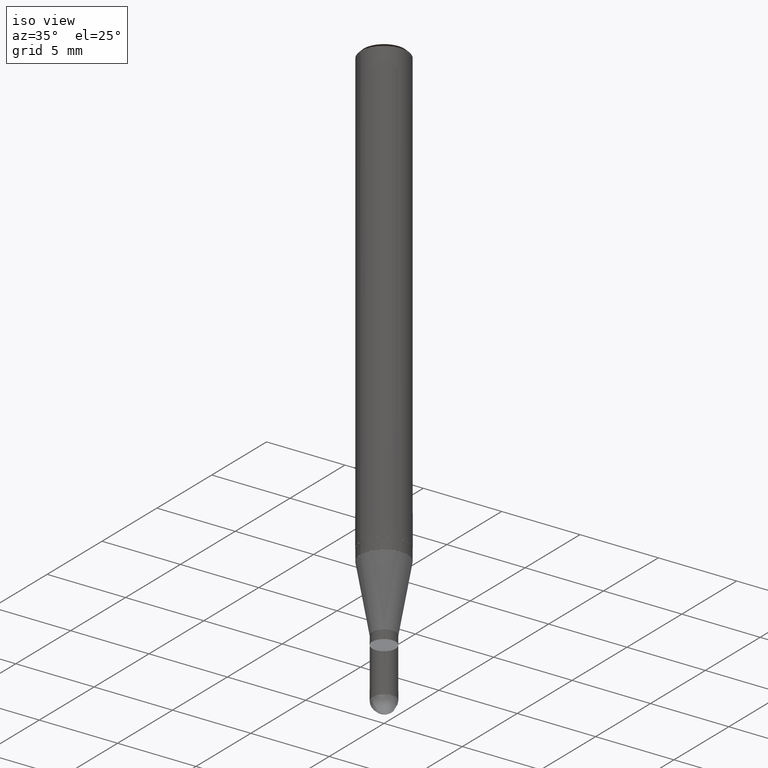
[diagram: clean part render]
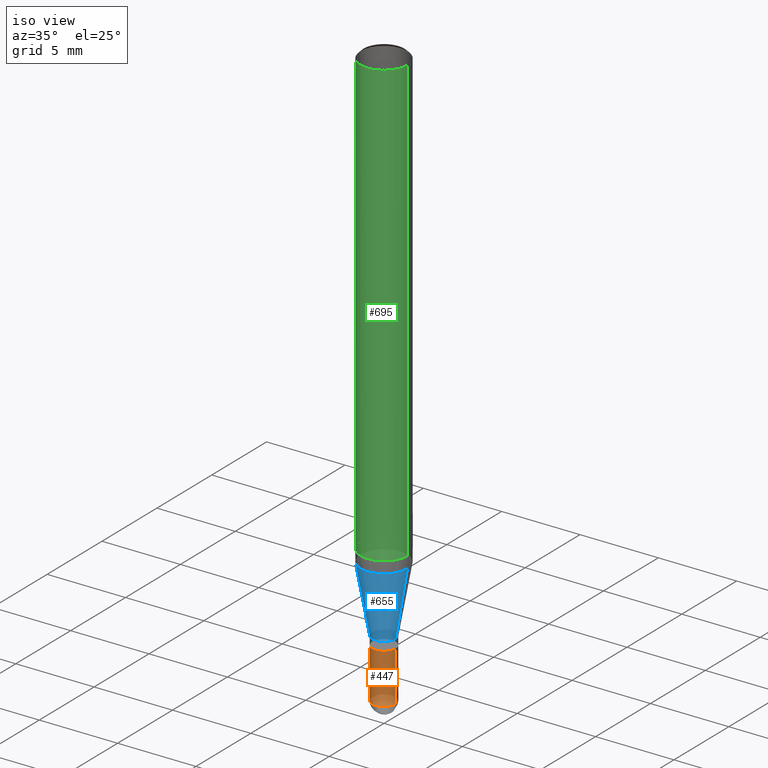
[diagram: same view with three faces highlighted in distinct colors, each labeled with its STEP entity id]
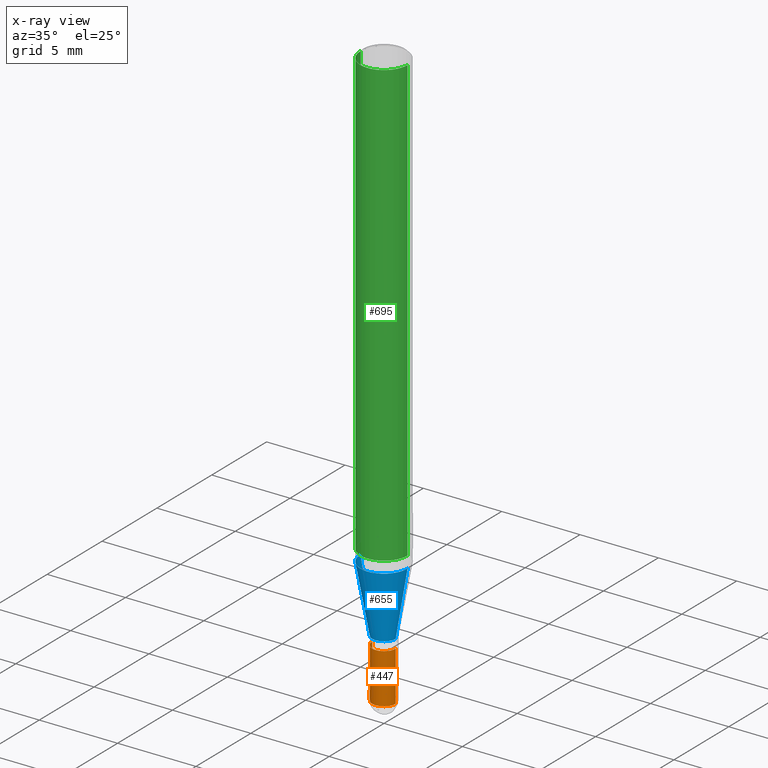
[diagram: x-ray of the same camera — body ghosted, the three highlighted faces saturated]
A machine part, iso view with three faces highlighted in distinct colors.
The next image is the same camera in x-ray (body ghosted, the three faces saturated) — at least one of them is partly hidden behind the body in this view.
Their STEP definitions:

[orange] entity #447 — the highlighted face is a freeform B-spline surface patch.
#294=CARTESIAN_POINT('',(0.75,0.0,-8.75));
#298=CARTESIAN_POINT('',(-0.75,0.0,-8.75));
#299=CARTESIAN_POINT('',(0.75,0.0,-5.5625));
#303=CARTESIAN_POINT('',(-0.75,0.0,-5.5625));
#308=CARTESIAN_POINT('',(-0.75,-0.75,-8.75));
#309=CARTESIAN_POINT('',(0.0,-0.75,-8.75));
#310=CARTESIAN_POINT('',(0.75,-0.75,-8.75));
#311=CARTESIAN_POINT('',(-0.75,-0.75,-5.5625));
#312=CARTESIAN_POINT('',(0.0,-0.75,-5.5625));
#313=CARTESIAN_POINT('',(0.75,-0.75,-5.5625));
#428=(
BOUNDED_SURFACE()
B_SPLINE_SURFACE(1,2,(
(#298,#308,#309,#310,#294),
(#303,#311,#312,#313,#299)
), .UNSPECIFIED.,.F.,.F.,.F.)
B_SPLINE_SURFACE_WITH_KNOTS((2,2),(3,2,3),(
0.0,1.0),(
0.0,0.5,1.0), .UNSPECIFIED.)
GEOMETRIC_REPRESENTATION_ITEM()
RATIONAL_B_SPLINE_SURFACE(((1.0,0.707106781187,1.0,0.707106781187,1.0),
(1.0,0.707106781187,1.0,0.707106781187,1.0)
))
REPRESENTATION_ITEM('')
SURFACE()
);
#429=(
BOUNDED_CURVE()
B_SPLINE_CURVE(2,(#294,#310,#309,#308,#298),.UNSPECIFIED.,.F.,.F.)
B_SPLINE_CURVE_WITH_KNOTS((3,2,3),
(0.0,0.5,1.0),.UNSPECIFIED.)
CURVE()
GEOMETRIC_REPRESENTATION_ITEM()
RATIONAL_B_SPLINE_CURVE((1.0,0.707106781187,1.0,0.707106781187,1.0))
REPRESENTATION_ITEM('')
);
#430=(
BOUNDED_CURVE()
B_SPLINE_CURVE(1,(#298,#303),.UNSPECIFIED.,.F.,.F.)
B_SPLINE_CURVE_WITH_KNOTS((2,2),
(0.0,1.0),.UNSPECIFIED.)
CURVE()
GEOMETRIC_REPRESENTATION_ITEM()
RATIONAL_B_SPLINE_CURVE((1.0,1.0))
REPRESENTATION_ITEM('')
);
#431=(
BOUNDED_CURVE()
B_SPLINE_CURVE(2,(#303,#311,#312,#313,#299),.UNSPECIFIED.,.F.,.F.)
B_SPLINE_CURVE_WITH_KNOTS((3,2,3),
(0.0,0.5,1.0),.UNSPECIFIED.)
CURVE()
GEOMETRIC_REPRESENTATION_ITEM()
RATIONAL_B_SPLINE_CURVE((1.0,0.707106781187,1.0,0.707106781187,1.0))
REPRESENTATION_ITEM('')
);
#432=(
BOUNDED_CURVE()
B_SPLINE_CURVE(1,(#299,#294),.UNSPECIFIED.,.F.,.F.)
B_SPLINE_CURVE_WITH_KNOTS((2,2),
(0.0,1.0),.UNSPECIFIED.)
CURVE()
GEOMETRIC_REPRESENTATION_ITEM()
RATIONAL_B_SPLINE_CURVE((1.0,1.0))
REPRESENTATION_ITEM('')
);
#433=VERTEX_POINT('',#294);
#434=VERTEX_POINT('',#298);
#435=VERTEX_POINT('',#299);
#436=VERTEX_POINT('',#303);
#437=EDGE_CURVE('',#433,#434,#429,.T.);
#438=EDGE_CURVE('',#434,#436,#430,.T.);
#439=EDGE_CURVE('',#436,#435,#431,.T.);
#440=EDGE_CURVE('',#435,#433,#432,.T.);
#441=ORIENTED_EDGE('',*,*,#437,.T.);
#442=ORIENTED_EDGE('',*,*,#438,.T.);
#443=ORIENTED_EDGE('',*,*,#439,.T.);
#444=ORIENTED_EDGE('',*,*,#440,.T.);
#445=EDGE_LOOP('',(#441,#442,#443,#444));
#446=FACE_OUTER_BOUND('',#445,.T.);
#447=ADVANCED_FACE('',(#446),#428,.T.);

[blue] entity #655 — the highlighted face is a freeform B-spline surface patch.
#314=CARTESIAN_POINT('',(0.75,0.0,-5.0));
#318=CARTESIAN_POINT('',(-0.75,0.0,-5.0));
#319=CARTESIAN_POINT('',(1.5,0.0,-0.746538635287));
#323=CARTESIAN_POINT('',(-1.5,0.0,-0.746538635287));
#340=CARTESIAN_POINT('',(-0.75,-0.75,-5.0));
#341=CARTESIAN_POINT('',(0.0,-0.75,-5.0));
#342=CARTESIAN_POINT('',(0.75,-0.75,-5.0));
#343=CARTESIAN_POINT('',(-1.5,-1.5,-0.746538635287));
#344=CARTESIAN_POINT('',(0.0,-1.5,-0.746538635287));
#345=CARTESIAN_POINT('',(1.5,-1.5,-0.746538635287));
#636=(
BOUNDED_SURFACE()
B_SPLINE_SURFACE(1,2,(
(#318,#340,#341,#342,#314),
(#323,#343,#344,#345,#319)
), .UNSPECIFIED.,.F.,.F.,.F.)
B_SPLINE_SURFACE_WITH_KNOTS((2,2),(3,2,3),(
0.0,1.0),(
0.0,0.5,1.0), .UNSPECIFIED.)
GEOMETRIC_REPRESENTATION_ITEM()
RATIONAL_B_SPLINE_SURFACE(((1.0,0.707106781187,1.0,0.707106781187,1.0),
(1.0,0.707106781187,1.0,0.707106781187,1.0)
))
REPRESENTATION_ITEM('')
SURFACE()
);
#637=(
BOUNDED_CURVE()
B_SPLINE_CURVE(2,(#314,#342,#341,#340,#318),.UNSPECIFIED.,.F.,.F.)
B_SPLINE_CURVE_WITH_KNOTS((3,2,3),
(0.0,0.5,1.0),.UNSPECIFIED.)
CURVE()
GEOMETRIC_REPRESENTATION_ITEM()
RATIONAL_B_SPLINE_CURVE((1.0,0.707106781187,1.0,0.707106781187,1.0))
REPRESENTATION_ITEM('')
);
#638=(
BOUNDED_CURVE()
B_SPLINE_CURVE(1,(#318,#323),.UNSPECIFIED.,.F.,.F.)
B_SPLINE_CURVE_WITH_KNOTS((2,2),
(0.0,1.0),.UNSPECIFIED.)
CURVE()
GEOMETRIC_REPRESENTATION_ITEM()
RATIONAL_B_SPLINE_CURVE((1.0,1.0))
REPRESENTATION_ITEM('')
);
#639=(
BOUNDED_CURVE()
B_SPLINE_CURVE(2,(#323,#343,#344,#345,#319),.UNSPECIFIED.,.F.,.F.)
B_SPLINE_CURVE_WITH_KNOTS((3,2,3),
(0.0,0.5,1.0),.UNSPECIFIED.)
CURVE()
GEOMETRIC_REPRESENTATION_ITEM()
RATIONAL_B_SPLINE_CURVE((1.0,0.707106781187,1.0,0.707106781187,1.0))
REPRESENTATION_ITEM('')
);
#640=(
BOUNDED_CURVE()
B_SPLINE_CURVE(1,(#319,#314),.UNSPECIFIED.,.F.,.F.)
B_SPLINE_CURVE_WITH_KNOTS((2,2),
(0.0,1.0),.UNSPECIFIED.)
CURVE()
GEOMETRIC_REPRESENTATION_ITEM()
RATIONAL_B_SPLINE_CURVE((1.0,1.0))
REPRESENTATION_ITEM('')
);
#641=VERTEX_POINT('',#314);
#642=VERTEX_POINT('',#318);
#643=VERTEX_POINT('',#319);
#644=VERTEX_POINT('',#323);
#645=EDGE_CURVE('',#641,#642,#637,.T.);
#646=EDGE_CURVE('',#642,#644,#638,.T.);
#647=EDGE_CURVE('',#644,#643,#639,.T.);
#648=EDGE_CURVE('',#643,#641,#640,.T.);
#649=ORIENTED_EDGE('',*,*,#645,.T.);
#650=ORIENTED_EDGE('',*,*,#646,.T.);
#651=ORIENTED_EDGE('',*,*,#647,.T.);
#652=ORIENTED_EDGE('',*,*,#648,.T.);
#653=EDGE_LOOP('',(#649,#650,#651,#652));
#654=FACE_OUTER_BOUND('',#653,.T.);
#655=ADVANCED_FACE('',(#654),#636,.T.);

[green] entity #695 — the highlighted face is a freeform B-spline surface patch.
#324=CARTESIAN_POINT('',(1.5,0.0,0.0));
#328=CARTESIAN_POINT('',(-1.5,0.0,0.0));
#329=CARTESIAN_POINT('',(1.5,0.0,28.3));
#333=CARTESIAN_POINT('',(-1.5,0.0,28.3));
#346=CARTESIAN_POINT('',(-1.5,-1.5,0.0));
#347=CARTESIAN_POINT('',(0.0,-1.5,0.0));
#348=CARTESIAN_POINT('',(1.5,-1.5,0.0));
#349=CARTESIAN_POINT('',(-1.5,-1.5,28.3));
#350=CARTESIAN_POINT('',(0.0,-1.5,28.3));
#351=CARTESIAN_POINT('',(1.5,-1.5,28.3));
#676=(
BOUNDED_SURFACE()
B_SPLINE_SURFACE(1,2,(
(#328,#346,#347,#348,#324),
(#333,#349,#350,#351,#329)
), .UNSPECIFIED.,.F.,.F.,.F.)
B_SPLINE_SURFACE_WITH_KNOTS((2,2),(3,2,3),(
0.0,1.0),(
0.0,0.5,1.0), .UNSPECIFIED.)
GEOMETRIC_REPRESENTATION_ITEM()
RATIONAL_B_SPLINE_SURFACE(((1.0,0.707106781187,1.0,0.707106781187,1.0),
(1.0,0.707106781187,1.0,0.707106781187,1.0)
))
REPRESENTATION_ITEM('')
SURFACE()
);
#677=(
BOUNDED_CURVE()
B_SPLINE_CURVE(2,(#324,#348,#347,#346,#328),.UNSPECIFIED.,.F.,.F.)
B_SPLINE_CURVE_WITH_KNOTS((3,2,3),
(0.0,0.5,1.0),.UNSPECIFIED.)
CURVE()
GEOMETRIC_REPRESENTATION_ITEM()
RATIONAL_B_SPLINE_CURVE((1.0,0.707106781187,1.0,0.707106781187,1.0))
REPRESENTATION_ITEM('')
);
#678=(
BOUNDED_CURVE()
B_SPLINE_CURVE(1,(#328,#333),.UNSPECIFIED.,.F.,.F.)
B_SPLINE_CURVE_WITH_KNOTS((2,2),
(0.0,1.0),.UNSPECIFIED.)
CURVE()
GEOMETRIC_REPRESENTATION_ITEM()
RATIONAL_B_SPLINE_CURVE((1.0,1.0))
REPRESENTATION_ITEM('')
);
#679=(
BOUNDED_CURVE()
B_SPLINE_CURVE(2,(#333,#349,#350,#351,#329),.UNSPECIFIED.,.F.,.F.)
B_SPLINE_CURVE_WITH_KNOTS((3,2,3),
(0.0,0.5,1.0),.UNSPECIFIED.)
CURVE()
GEOMETRIC_REPRESENTATION_ITEM()
RATIONAL_B_SPLINE_CURVE((1.0,0.707106781187,1.0,0.707106781187,1.0))
REPRESENTATION_ITEM('')
);
#680=(
BOUNDED_CURVE()
B_SPLINE_CURVE(1,(#329,#324),.UNSPECIFIED.,.F.,.F.)
B_SPLINE_CURVE_WITH_KNOTS((2,2),
(0.0,1.0),.UNSPECIFIED.)
CURVE()
GEOMETRIC_REPRESENTATION_ITEM()
RATIONAL_B_SPLINE_CURVE((1.0,1.0))
REPRESENTATION_ITEM('')
);
#681=VERTEX_POINT('',#324);
#682=VERTEX_POINT('',#328);
#683=VERTEX_POINT('',#329);
#684=VERTEX_POINT('',#333);
#685=EDGE_CURVE('',#681,#682,#677,.T.);
#686=EDGE_CURVE('',#682,#684,#678,.T.);
#687=EDGE_CURVE('',#684,#683,#679,.T.);
#688=EDGE_CURVE('',#683,#681,#680,.T.);
#689=ORIENTED_EDGE('',*,*,#685,.T.);
#690=ORIENTED_EDGE('',*,*,#686,.T.);
#691=ORIENTED_EDGE('',*,*,#687,.T.);
#692=ORIENTED_EDGE('',*,*,#688,.T.);
#693=EDGE_LOOP('',(#689,#690,#691,#692));
#694=FACE_OUTER_BOUND('',#693,.T.);
#695=ADVANCED_FACE('',(#694),#676,.T.);